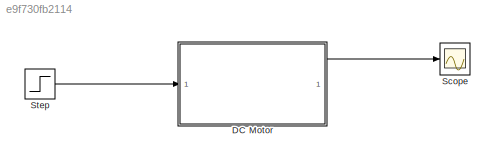
MODEL slx_e9f730fb2114
KIND model
CONFIG AbsTol = auto
CONFIG EnableMultiTasking = off
CONFIG FixedStep = auto
CONFIG MaxStep = auto
CONFIG MinStep = auto
CONFIG RelTol = 1e-3
CONFIG SampleTimeConstraint = Unconstrained
CONFIG SolverName = VariableStepAuto
CONFIG StartTime = 0.0
CONFIG StopTime = 10.0
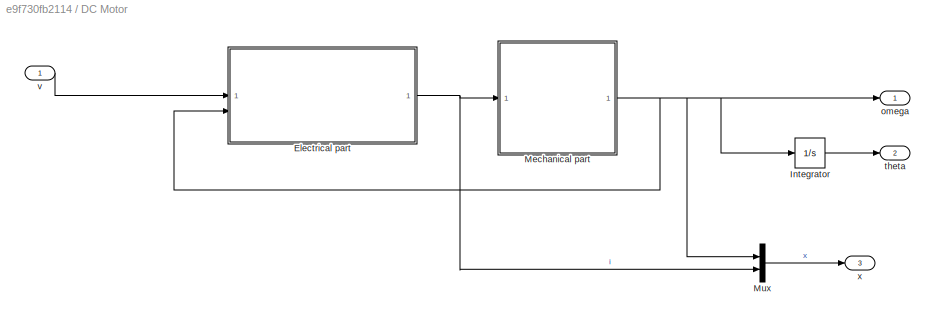
BLOCK [SubSystem] DC Motor
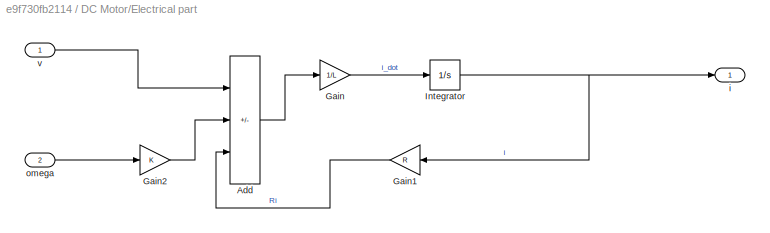
BLOCK [SubSystem] DC Motor/Electrical part 
BLOCK [Sum] DC Motor/Electrical part /Add
  IconShape = rectangular
  Inputs = +--
BLOCK [Gain] DC Motor/Electrical part /Gain
  Gain = 1/L
BLOCK [Gain] DC Motor/Electrical part /Gain1
  Gain = R
  NameLocation = top
BLOCK [Gain] DC Motor/Electrical part /Gain2
  Gain = K
BLOCK [Integrator] DC Motor/Electrical part /Integrator
BLOCK [Outport] DC Motor/Electrical part /i
BLOCK [Inport] DC Motor/Electrical part /omega
  Port = 2
BLOCK [Inport] DC Motor/Electrical part /v
BLOCK [Integrator] DC Motor/Integrator
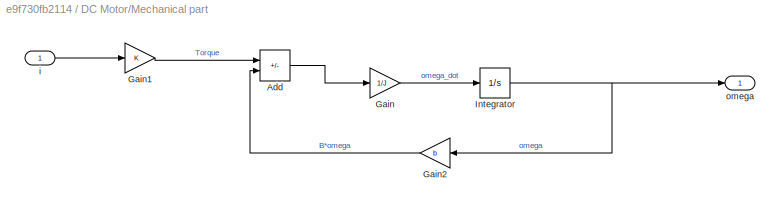
BLOCK [SubSystem] DC Motor/Mechanical part
BLOCK [Sum] DC Motor/Mechanical part/Add
  IconShape = rectangular
  Inputs = +-
BLOCK [Gain] DC Motor/Mechanical part/Gain
  Gain = 1/J
BLOCK [Gain] DC Motor/Mechanical part/Gain1
  Gain = K
BLOCK [Gain] DC Motor/Mechanical part/Gain2
  Gain = b
  NameLocation = top
BLOCK [Integrator] DC Motor/Mechanical part/Integrator
BLOCK [Inport] DC Motor/Mechanical part/i
BLOCK [Outport] DC Motor/Mechanical part/omega
BLOCK [Mux] DC Motor/Mux
  DisplayOption = bar
  Inputs = 2
BLOCK [Outport] DC Motor/omega
BLOCK [Outport] DC Motor/theta
  Port = 2
BLOCK [Inport] DC Motor/v
BLOCK [Outport] DC Motor/x
  Port = 3
BLOCK [Scope] Scope
  Floating = off
  NumInputPorts = 1
  ScopeSpecificationString = Simulink.scopes.TimeScopeBlockCfg('CurrentConfiguration', extmgr.ConfigurationSet(extmgr.Configuration('Core','General UI',true),extmgr.Configuration('Core','Source UI',true),extmgr.Configuration('Sources','WiredSimulink',true),extmgr.Configuration('Visuals','Time Domain',true,'SerializedDisplays',{struct('MinYLimReal','-0.01249','MaxYLimReal','0.11239','YLabelReal','','MinYLimMag','0.00000','MaxY...<+1454ch>
BLOCK [Step] Step
  SampleTime = 0
LINE DC Motor/Electrical part /Add:1 -> DC Motor/Electrical part /Gain:1
LINE DC Motor/Electrical part /Gain1:1 -> DC Motor/Electrical part /Add:3
LINE DC Motor/Electrical part /Gain2:1 -> DC Motor/Electrical part /Add:2
LINE DC Motor/Electrical part /Gain:1 -> DC Motor/Electrical part /Integrator:1
NET DC Motor/Electrical part /Integrator:1 -> DC Motor/Electrical part /Gain1:1, DC Motor/Electrical part /i:1
LINE DC Motor/Electrical part /omega:1 -> DC Motor/Electrical part /Gain2:1
LINE DC Motor/Electrical part /v:1 -> DC Motor/Electrical part /Add:1
NET DC Motor/Electrical part :1 -> DC Motor/Mechanical part:1, DC Motor/Mux:2
LINE DC Motor/Integrator:1 -> DC Motor/theta:1
LINE DC Motor/Mechanical part/Add:1 -> DC Motor/Mechanical part/Gain:1
LINE DC Motor/Mechanical part/Gain1:1 -> DC Motor/Mechanical part/Add:1
LINE DC Motor/Mechanical part/Gain2:1 -> DC Motor/Mechanical part/Add:2
LINE DC Motor/Mechanical part/Gain:1 -> DC Motor/Mechanical part/Integrator:1
NET DC Motor/Mechanical part/Integrator:1 -> DC Motor/Mechanical part/Gain2:1, DC Motor/Mechanical part/omega:1
LINE DC Motor/Mechanical part/i:1 -> DC Motor/Mechanical part/Gain1:1
NET DC Motor/Mechanical part:1 -> DC Motor/Electrical part :2, DC Motor/Integrator:1, DC Motor/Mux:1, DC Motor/omega:1
LINE DC Motor/Mux:1 -> DC Motor/x:1
LINE DC Motor/v:1 -> DC Motor/Electrical part :1
LINE DC Motor:1 -> Scope:1
LINE Step:1 -> DC Motor:1
note: NET lines group one-source signal fan-out (src -> all destinations, sorted); 1:1 wires keep LINE
